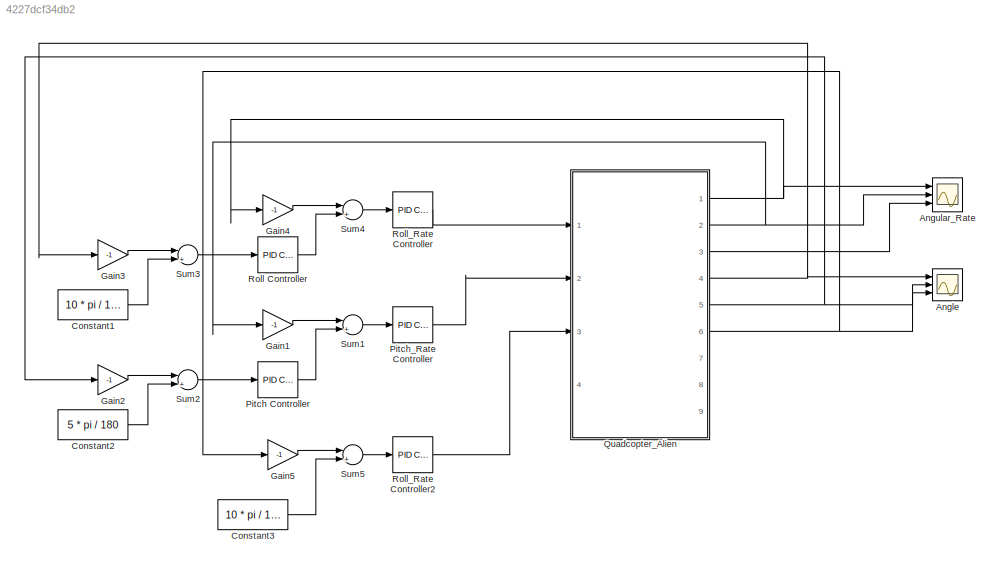
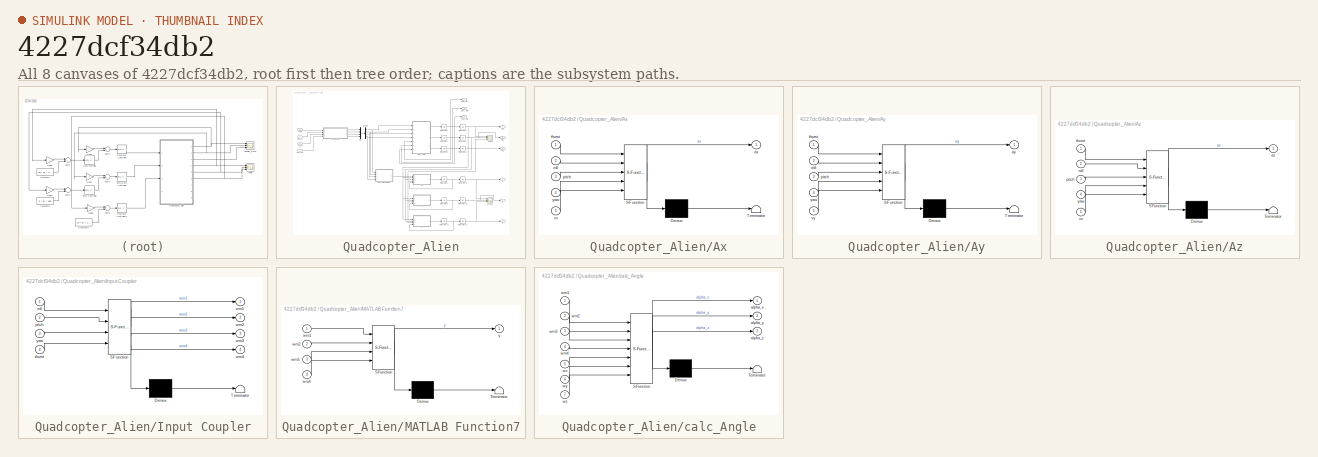
[diagram: thumbnail index - all 8 canvases of the model, root first then tree order]
MODEL slx_4227dcf34db2
KIND model
BLOCK [Scope] Angle
  Floating = off
  NumInputPorts = 3
  Ports = [3]
  SaveName = ScopeData3
  ShowLegends = off
  YMax = 5~5~5
  YMin = -5~-5~-5
BLOCK [Scope] Angular_Rate
  Floating = off
  NumInputPorts = 3
  Ports = [3]
  SaveName = ScopeData2
  ShowLegends = off
  YMax = 1e+06~5~5
  YMin = 300000~-5~-5
BLOCK [Constant] Constant1
  Value = 10 * pi / 180
BLOCK [Constant] Constant2
  Value = 5 * pi / 180
BLOCK [Constant] Constant3
  Value = 10 * pi / 180
BLOCK [Gain] Gain1
  Gain = -1
  OutDataTypeStr = Inherit: Inherit via internal rule
  ParamDataTypeStr = Inherit: Inherit via internal rule
  SaturateOnIntegerOverflow = off
BLOCK [Gain] Gain2
  Gain = -1
  OutDataTypeStr = Inherit: Inherit via internal rule
  ParamDataTypeStr = Inherit: Inherit via internal rule
  SaturateOnIntegerOverflow = off
BLOCK [Gain] Gain3
  Gain = -1
  OutDataTypeStr = Inherit: Inherit via internal rule
  ParamDataTypeStr = Inherit: Inherit via internal rule
  SaturateOnIntegerOverflow = off
BLOCK [Gain] Gain4
  Gain = -1
  OutDataTypeStr = Inherit: Inherit via internal rule
  ParamDataTypeStr = Inherit: Inherit via internal rule
  SaturateOnIntegerOverflow = off
BLOCK [Gain] Gain5
  Gain = -1
  OutDataTypeStr = Inherit: Inherit via internal rule
  ParamDataTypeStr = Inherit: Inherit via internal rule
  SaturateOnIntegerOverflow = off
BLOCK [Reference] Pitch Controller  REF=simulink/Continuous/PID Controller
  AntiWindupMode = none
  Controller = PID
  D = 0
  DOutDataTypeStr = Inherit: Inherit via internal rule
  DOutMax = []
  DOutMin = []
  DParamDataTypeStr = Inherit: Inherit via internal rule
  DParamMax = []
  DParamMin = []
  DifferentiatorICPrevScaledInput = 0
  DifferentiatorOutDataTypeStr = Inherit: Inherit via internal rule
  DifferentiatorOutMax = []
  DifferentiatorOutMin = []
  ExternalReset = none
  FilterContinuousStateAttributes = ''
  FilterMethod = Forward Euler
  FilterOutDataTypeStr = Inherit: Inherit via internal rule
  FilterOutMax = []
  FilterOutMin = []
  FilterRTWStateStorageClass = Auto
  FilterStateMustResolveToSignalObject = off
  Form = Parallel
  I = 0.05
  IOutDataTypeStr = Inherit: Inherit via internal rule
  IOutMax = []
  IOutMin = []
  IParamDataTypeStr = Inherit: Inherit via internal rule
  IParamMax = []
  IParamMin = []
  IgnoreLimit = off
  InitialConditionForFilter = 0
  InitialConditionForIntegrator = 0
  InitialConditionSource = internal
  IntegratorContinuousStateAttributes = ''
  IntegratorMethod = Forward Euler
  IntegratorOutDataTypeStr = Inherit: Inherit via internal rule
  IntegratorOutMax = []
  IntegratorOutMin = []
  IntegratorRTWStateStorageClass = Auto
  IntegratorStateMustResolveToSignalObject = off
  Kb = 1
  KbOutDataTypeStr = Inherit: Inherit via internal rule
  KbOutMax = []
  KbOutMin = []
  KbParamDataTypeStr = Inherit: Inherit via internal rule
  KbParamMax = []
  KbParamMin = []
  Kt = 1
  KtOutDataTypeStr = Inherit: Inherit via internal rule
  KtOutMax = []
  KtOutMin = []
  KtParamDataTypeStr = Inherit: Inherit via internal rule
  KtParamMax = []
  KtParamMin = []
  LimitOutput = off
  LinearizeAsGain = on
  LockScale = off
  LowerSaturationLimit = -inf
  N = 100
  NOutDataTypeStr = Inherit: Inherit via internal rule
  NOutMax = []
  NOutMin = []
  NParamDataTypeStr = Inherit: Inherit via internal rule
  NParamMax = []
  NParamMin = []
  P = 10
  POutDataTypeStr = Inherit: Inherit via internal rule
  POutMax = []
  POutMin = []
  PParamDataTypeStr = Inherit: Inherit via internal rule
  PParamMax = []
  PParamMin = []
  Ports = [1, 1]
  RndMeth = Floor
  SampleTime = -1
  SaturateOnIntegerOverflow = off
  SaturationOutDataTypeStr = Inherit: Same as input
  SaturationOutMax = []
  SaturationOutMin = []
  SourceBlock = simulink/Continuous/PID Controller
  SourceType = PID 1dof
  SumAccumDataTypeStr = Inherit: Inherit via internal rule
  SumDAccumDataTypeStr = Inherit: Inherit via internal rule
  SumDOutDataTypeStr = Inherit: Inherit via internal rule
  SumDOutMax = []
  SumDOutMin = []
  SumI1AccumDataTypeStr = Inherit: Inherit via internal rule
  SumI1OutDataTypeStr = Inherit: Inherit via internal rule
  SumI1OutMax = []
  SumI1OutMin = []
  SumI2AccumDataTypeStr = Inherit: Inherit via internal rule
  SumI2OutDataTypeStr = Inherit: Inherit via internal rule
  SumI2OutMax = []
  SumI2OutMin = []
  SumI3AccumDataTypeStr = Inherit: Inherit via internal rule
  SumI3OutDataTypeStr = Inherit: Inherit via internal rule
  SumI3OutMax = []
  SumI3OutMin = []
  SumOutDataTypeStr = Inherit: Inherit via internal rule
  SumOutMax = []
  SumOutMin = []
  TimeDomain = Continuous-time
  TrackingMode = off
  UpperSaturationLimit = inf
  UseFilter = on
  ZeroCross = on
BLOCK [Reference] Pitch_Rate Controller  REF=simulink/Continuous/PID Controller
  AntiWindupMode = none
  Controller = PID
  D = 0.1
  DOutDataTypeStr = Inherit: Inherit via internal rule
  DOutMax = []
  DOutMin = []
  DParamDataTypeStr = Inherit: Inherit via internal rule
  DParamMax = []
  DParamMin = []
  DifferentiatorICPrevScaledInput = 0
  DifferentiatorOutDataTypeStr = Inherit: Inherit via internal rule
  DifferentiatorOutMax = []
  DifferentiatorOutMin = []
  ExternalReset = none
  FilterContinuousStateAttributes = ''
  FilterMethod = Forward Euler
  FilterOutDataTypeStr = Inherit: Inherit via internal rule
  FilterOutMax = []
  FilterOutMin = []
  FilterRTWStateStorageClass = Auto
  FilterStateMustResolveToSignalObject = off
  Form = Parallel
  I = 0
  IOutDataTypeStr = Inherit: Inherit via internal rule
  IOutMax = []
  IOutMin = []
  IParamDataTypeStr = Inherit: Inherit via internal rule
  IParamMax = []
  IParamMin = []
  IgnoreLimit = off
  InitialConditionForFilter = 0
  InitialConditionForIntegrator = 0
  InitialConditionSource = internal
  IntegratorContinuousStateAttributes = ''
  IntegratorMethod = Forward Euler
  IntegratorOutDataTypeStr = Inherit: Inherit via internal rule
  IntegratorOutMax = []
  IntegratorOutMin = []
  IntegratorRTWStateStorageClass = Auto
  IntegratorStateMustResolveToSignalObject = off
  Kb = 1
  KbOutDataTypeStr = Inherit: Inherit via internal rule
  KbOutMax = []
  KbOutMin = []
  KbParamDataTypeStr = Inherit: Inherit via internal rule
  KbParamMax = []
  KbParamMin = []
  Kt = 1
  KtOutDataTypeStr = Inherit: Inherit via internal rule
  KtOutMax = []
  KtOutMin = []
  KtParamDataTypeStr = Inherit: Inherit via internal rule
  KtParamMax = []
  KtParamMin = []
  LimitOutput = off
  LinearizeAsGain = on
  LockScale = off
  LowerSaturationLimit = -inf
  N = 100
  NOutDataTypeStr = Inherit: Inherit via internal rule
  NOutMax = []
  NOutMin = []
  NParamDataTypeStr = Inherit: Inherit via internal rule
  NParamMax = []
  NParamMin = []
  P = 1
  POutDataTypeStr = Inherit: Inherit via internal rule
  POutMax = []
  POutMin = []
  PParamDataTypeStr = Inherit: Inherit via internal rule
  PParamMax = []
  PParamMin = []
  Ports = [1, 1]
  RndMeth = Floor
  SampleTime = -1
  SaturateOnIntegerOverflow = off
  SaturationOutDataTypeStr = Inherit: Same as input
  SaturationOutMax = []
  SaturationOutMin = []
  SourceBlock = simulink/Continuous/PID Controller
  SourceType = PID 1dof
  SumAccumDataTypeStr = Inherit: Inherit via internal rule
  SumDAccumDataTypeStr = Inherit: Inherit via internal rule
  SumDOutDataTypeStr = Inherit: Inherit via internal rule
  SumDOutMax = []
  SumDOutMin = []
  SumI1AccumDataTypeStr = Inherit: Inherit via internal rule
  SumI1OutDataTypeStr = Inherit: Inherit via internal rule
  SumI1OutMax = []
  SumI1OutMin = []
  SumI2AccumDataTypeStr = Inherit: Inherit via internal rule
  SumI2OutDataTypeStr = Inherit: Inherit via internal rule
  SumI2OutMax = []
  SumI2OutMin = []
  SumI3AccumDataTypeStr = Inherit: Inherit via internal rule
  SumI3OutDataTypeStr = Inherit: Inherit via internal rule
  SumI3OutMax = []
  SumI3OutMin = []
  SumOutDataTypeStr = Inherit: Inherit via internal rule
  SumOutMax = []
  SumOutMin = []
  TimeDomain = Continuous-time
  TrackingMode = off
  UpperSaturationLimit = inf
  UseFilter = on
  ZeroCross = on
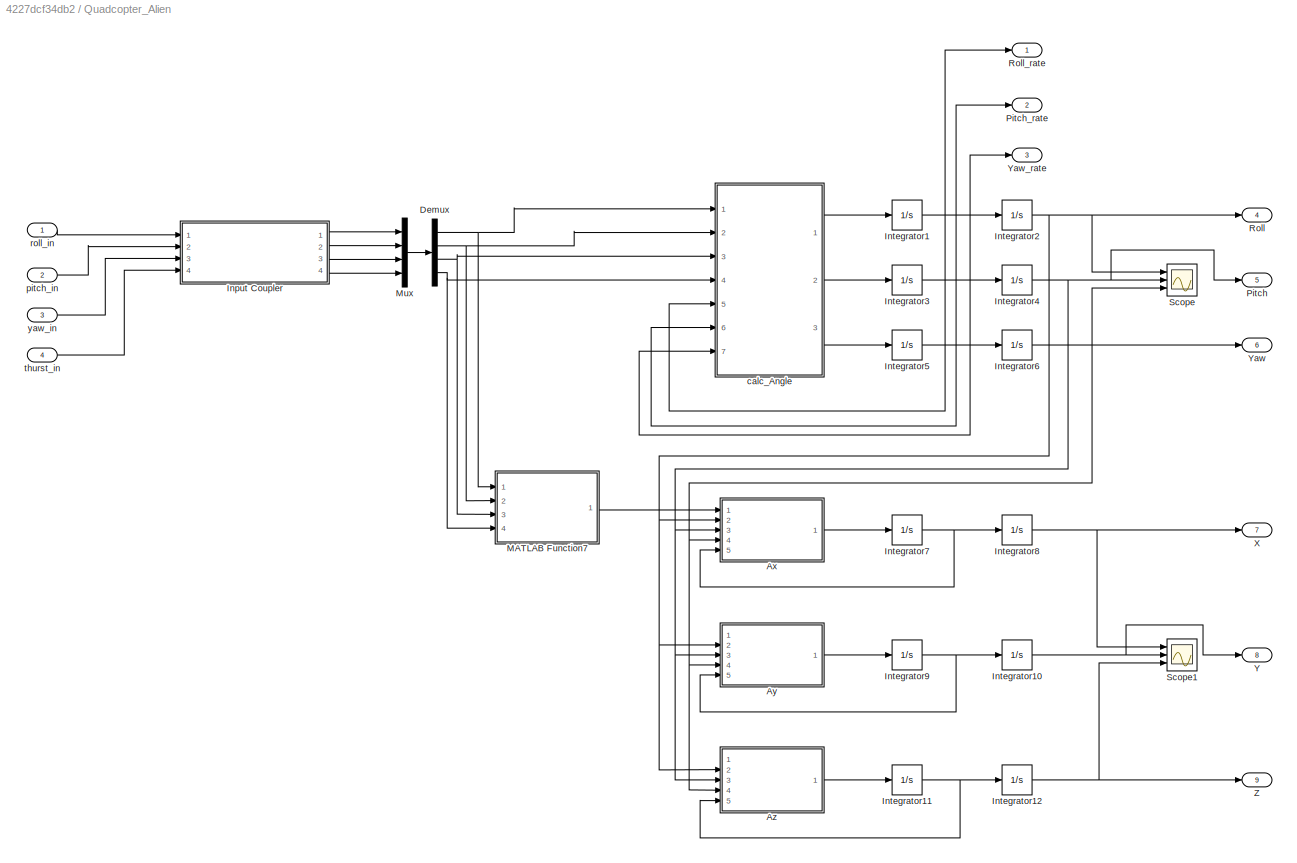
BLOCK [SubSystem] Quadcopter_Alien
  Ports = [4, 9]
  RequestExecContextInheritance = off
BLOCK [SubSystem] Quadcopter_Alien/Ax
  ErrorFcn = Stateflow.Translate.translate
  PermitHierarchicalResolution = ExplicitOnly
  Ports = [5, 1]
  RequestExecContextInheritance = off
  SFBlockType = MATLAB Function
  TreatAsAtomicUnit = on
BLOCK [Demux] Quadcopter_Alien/Ax/ Demux 
  Outputs = 1
  Ports = [1, 1]
BLOCK [S-Function] Quadcopter_Alien/Ax/ SFunction 
  EnableBusSupport = on
  FunctionName = sf_sfun
  PortCounts = [5 2]
  Ports = [5, 2]
  Tag = Stateflow S-Function PID_quad_iris_model 9
BLOCK [Terminator] Quadcopter_Alien/Ax/ Terminator 
BLOCK [Outport] Quadcopter_Alien/Ax/ax
  IconDisplay = Port number
BLOCK [Inport] Quadcopter_Alien/Ax/pitch
  IconDisplay = Port number
  Port = 3
BLOCK [Inport] Quadcopter_Alien/Ax/roll
  IconDisplay = Port number
  Port = 2
BLOCK [Inport] Quadcopter_Alien/Ax/thurst
  IconDisplay = Port number
BLOCK [Inport] Quadcopter_Alien/Ax/vx
  IconDisplay = Port number
  Port = 5
BLOCK [Inport] Quadcopter_Alien/Ax/yaw
  IconDisplay = Port number
  Port = 4
BLOCK [SubSystem] Quadcopter_Alien/Ay
  ErrorFcn = Stateflow.Translate.translate
  PermitHierarchicalResolution = ExplicitOnly
  Ports = [5, 1]
  RequestExecContextInheritance = off
  SFBlockType = MATLAB Function
  TreatAsAtomicUnit = on
BLOCK [Demux] Quadcopter_Alien/Ay/ Demux 
  Outputs = 1
  Ports = [1, 1]
BLOCK [S-Function] Quadcopter_Alien/Ay/ SFunction 
  EnableBusSupport = on
  FunctionName = sf_sfun
  PortCounts = [5 2]
  Ports = [5, 2]
  Tag = Stateflow S-Function PID_quad_iris_model 10
BLOCK [Terminator] Quadcopter_Alien/Ay/ Terminator 
BLOCK [Outport] Quadcopter_Alien/Ay/ay
  IconDisplay = Port number
BLOCK [Inport] Quadcopter_Alien/Ay/pitch
  IconDisplay = Port number
  Port = 3
BLOCK [Inport] Quadcopter_Alien/Ay/roll
  IconDisplay = Port number
  Port = 2
BLOCK [Inport] Quadcopter_Alien/Ay/thurst
  IconDisplay = Port number
BLOCK [Inport] Quadcopter_Alien/Ay/vy
  IconDisplay = Port number
  Port = 5
BLOCK [Inport] Quadcopter_Alien/Ay/yaw
  IconDisplay = Port number
  Port = 4
BLOCK [SubSystem] Quadcopter_Alien/Az
  ErrorFcn = Stateflow.Translate.translate
  PermitHierarchicalResolution = ExplicitOnly
  Ports = [5, 1]
  RequestExecContextInheritance = off
  SFBlockType = MATLAB Function
  TreatAsAtomicUnit = on
BLOCK [Demux] Quadcopter_Alien/Az/ Demux 
  Outputs = 1
  Ports = [1, 1]
BLOCK [S-Function] Quadcopter_Alien/Az/ SFunction 
  EnableBusSupport = on
  FunctionName = sf_sfun
  PortCounts = [5 2]
  Ports = [5, 2]
  Tag = Stateflow S-Function PID_quad_iris_model 11
BLOCK [Terminator] Quadcopter_Alien/Az/ Terminator 
BLOCK [Outport] Quadcopter_Alien/Az/az
  IconDisplay = Port number
BLOCK [Inport] Quadcopter_Alien/Az/pitch
  IconDisplay = Port number
  Port = 3
BLOCK [Inport] Quadcopter_Alien/Az/roll
  IconDisplay = Port number
  Port = 2
BLOCK [Inport] Quadcopter_Alien/Az/thurst
  IconDisplay = Port number
BLOCK [Inport] Quadcopter_Alien/Az/vz
  IconDisplay = Port number
  Port = 5
BLOCK [Inport] Quadcopter_Alien/Az/yaw
  IconDisplay = Port number
  Port = 4
BLOCK [Demux] Quadcopter_Alien/Demux
  DisplayOption = bar
  Ports = [1, 4]
BLOCK [SubSystem] Quadcopter_Alien/Input Coupler
  ErrorFcn = Stateflow.Translate.translate
  PermitHierarchicalResolution = ExplicitOnly
  Ports = [4, 4]
  RequestExecContextInheritance = off
  SFBlockType = MATLAB Function
  TreatAsAtomicUnit = on
BLOCK [Demux] Quadcopter_Alien/Input Coupler/ Demux 
  Outputs = 1
  Ports = [1, 1]
BLOCK [S-Function] Quadcopter_Alien/Input Coupler/ SFunction 
  EnableBusSupport = on
  FunctionName = sf_sfun
  PortCounts = [4 5]
  Ports = [4, 5]
  Tag = Stateflow S-Function PID_quad_iris_model 4
BLOCK [Terminator] Quadcopter_Alien/Input Coupler/ Terminator 
BLOCK [Inport] Quadcopter_Alien/Input Coupler/pitch
  IconDisplay = Port number
  Port = 2
BLOCK [Inport] Quadcopter_Alien/Input Coupler/roll
  IconDisplay = Port number
BLOCK [Inport] Quadcopter_Alien/Input Coupler/thurst
  IconDisplay = Port number
  Port = 4
BLOCK [Outport] Quadcopter_Alien/Input Coupler/wm1
  IconDisplay = Port number
BLOCK [Outport] Quadcopter_Alien/Input Coupler/wm2
  IconDisplay = Port number
  Port = 2
BLOCK [Outport] Quadcopter_Alien/Input Coupler/wm3
  IconDisplay = Port number
  Port = 3
BLOCK [Outport] Quadcopter_Alien/Input Coupler/wm4
  IconDisplay = Port number
  Port = 4
BLOCK [Inport] Quadcopter_Alien/Input Coupler/yaw
  IconDisplay = Port number
  Port = 3
BLOCK [Integrator] Quadcopter_Alien/Integrator1
  Ports = [1, 1]
BLOCK [Integrator] Quadcopter_Alien/Integrator10
  Ports = [1, 1]
BLOCK [Integrator] Quadcopter_Alien/Integrator11
  Ports = [1, 1]
BLOCK [Integrator] Quadcopter_Alien/Integrator12
  Ports = [1, 1]
BLOCK [Integrator] Quadcopter_Alien/Integrator2
  Ports = [1, 1]
BLOCK [Integrator] Quadcopter_Alien/Integrator3
  Ports = [1, 1]
BLOCK [Integrator] Quadcopter_Alien/Integrator4
  Ports = [1, 1]
BLOCK [Integrator] Quadcopter_Alien/Integrator5
  Ports = [1, 1]
BLOCK [Integrator] Quadcopter_Alien/Integrator6
  Ports = [1, 1]
BLOCK [Integrator] Quadcopter_Alien/Integrator7
  Ports = [1, 1]
BLOCK [Integrator] Quadcopter_Alien/Integrator8
  Ports = [1, 1]
BLOCK [Integrator] Quadcopter_Alien/Integrator9
  Ports = [1, 1]
BLOCK [SubSystem] Quadcopter_Alien/MATLAB Function7
  ErrorFcn = Stateflow.Translate.translate
  PermitHierarchicalResolution = ExplicitOnly
  Ports = [4, 1]
  RequestExecContextInheritance = off
  SFBlockType = MATLAB Function
  TreatAsAtomicUnit = on
BLOCK [Demux] Quadcopter_Alien/MATLAB Function7/ Demux 
  Outputs = 1
  Ports = [1, 1]
BLOCK [S-Function] Quadcopter_Alien/MATLAB Function7/ SFunction 
  EnableBusSupport = on
  FunctionName = sf_sfun
  PortCounts = [4 2]
  Ports = [4, 2]
  Tag = Stateflow S-Function PID_quad_iris_model 8
BLOCK [Terminator] Quadcopter_Alien/MATLAB Function7/ Terminator 
BLOCK [Inport] Quadcopter_Alien/MATLAB Function7/wm1
  IconDisplay = Port number
BLOCK [Inport] Quadcopter_Alien/MATLAB Function7/wm2
  IconDisplay = Port number
  Port = 2
BLOCK [Inport] Quadcopter_Alien/MATLAB Function7/wm3
  IconDisplay = Port number
  Port = 3
BLOCK [Inport] Quadcopter_Alien/MATLAB Function7/wm4
  IconDisplay = Port number
  Port = 4
BLOCK [Outport] Quadcopter_Alien/MATLAB Function7/y
  IconDisplay = Port number
BLOCK [Mux] Quadcopter_Alien/Mux
  DisplayOption = bar
  Ports = [4, 1]
BLOCK [Outport] Quadcopter_Alien/Pitch
  IconDisplay = Port number
  Port = 5
BLOCK [Outport] Quadcopter_Alien/Pitch_rate
  IconDisplay = Port number
  Port = 2
BLOCK [Outport] Quadcopter_Alien/Roll
  IconDisplay = Port number
  Port = 4
BLOCK [Outport] Quadcopter_Alien/Roll_rate
  IconDisplay = Port number
BLOCK [Scope] Quadcopter_Alien/Scope
  Floating = off
  NumInputPorts = 3
  Ports = [3]
  ShowLegends = off
  YMax = 5~5~5
  YMin = -5~-5~-5
BLOCK [Scope] Quadcopter_Alien/Scope1
  Floating = off
  NumInputPorts = 3
  Ports = [3]
  SaveName = ScopeData1
  ShowLegends = off
  YMax = 5~5~5
  YMin = -5~-5~-5
BLOCK [Outport] Quadcopter_Alien/X
  IconDisplay = Port number
  Port = 7
BLOCK [Outport] Quadcopter_Alien/Y
  IconDisplay = Port number
  Port = 8
BLOCK [Outport] Quadcopter_Alien/Yaw
  IconDisplay = Port number
  Port = 6
BLOCK [Outport] Quadcopter_Alien/Yaw_rate
  IconDisplay = Port number
  Port = 3
BLOCK [Outport] Quadcopter_Alien/Z
  IconDisplay = Port number
  Port = 9
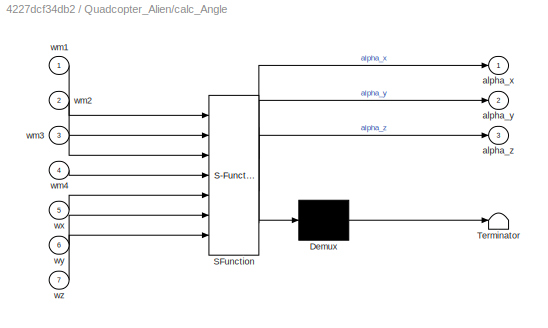
BLOCK [SubSystem] Quadcopter_Alien/calc_Angle
  ErrorFcn = Stateflow.Translate.translate
  PermitHierarchicalResolution = ExplicitOnly
  Ports = [7, 3]
  RequestExecContextInheritance = off
  SFBlockType = MATLAB Function
  TreatAsAtomicUnit = on
BLOCK [Demux] Quadcopter_Alien/calc_Angle/ Demux 
  Outputs = 1
  Ports = [1, 1]
BLOCK [S-Function] Quadcopter_Alien/calc_Angle/ SFunction 
  EnableBusSupport = on
  FunctionName = sf_sfun
  PortCounts = [7 4]
  Ports = [7, 4]
  Tag = Stateflow S-Function PID_quad_iris_model 13
BLOCK [Terminator] Quadcopter_Alien/calc_Angle/ Terminator 
BLOCK [Outport] Quadcopter_Alien/calc_Angle/alpha_x
  IconDisplay = Port number
BLOCK [Outport] Quadcopter_Alien/calc_Angle/alpha_y
  IconDisplay = Port number
  Port = 2
BLOCK [Outport] Quadcopter_Alien/calc_Angle/alpha_z
  IconDisplay = Port number
  Port = 3
BLOCK [Inport] Quadcopter_Alien/calc_Angle/wm1
  IconDisplay = Port number
BLOCK [Inport] Quadcopter_Alien/calc_Angle/wm2
  IconDisplay = Port number
  Port = 2
BLOCK [Inport] Quadcopter_Alien/calc_Angle/wm3
  IconDisplay = Port number
  Port = 3
BLOCK [Inport] Quadcopter_Alien/calc_Angle/wm4
  IconDisplay = Port number
  Port = 4
BLOCK [Inport] Quadcopter_Alien/calc_Angle/wx
  IconDisplay = Port number
  Port = 5
BLOCK [Inport] Quadcopter_Alien/calc_Angle/wy
  IconDisplay = Port number
  Port = 6
BLOCK [Inport] Quadcopter_Alien/calc_Angle/wz
  IconDisplay = Port number
  Port = 7
BLOCK [Inport] Quadcopter_Alien/pitch_in
  IconDisplay = Port number
  Port = 2
BLOCK [Inport] Quadcopter_Alien/roll_in
  IconDisplay = Port number
BLOCK [Inport] Quadcopter_Alien/thurst_in
  IconDisplay = Port number
  Port = 4
BLOCK [Inport] Quadcopter_Alien/yaw_in
  IconDisplay = Port number
  Port = 3
BLOCK [Reference] Roll Controller  REF=simulink/Continuous/PID Controller
  AntiWindupMode = none
  Controller = PID
  D = 0
  DOutDataTypeStr = Inherit: Inherit via internal rule
  DOutMax = []
  DOutMin = []
  DParamDataTypeStr = Inherit: Inherit via internal rule
  DParamMax = []
  DParamMin = []
  DifferentiatorICPrevScaledInput = 0
  DifferentiatorOutDataTypeStr = Inherit: Inherit via internal rule
  DifferentiatorOutMax = []
  DifferentiatorOutMin = []
  ExternalReset = none
  FilterContinuousStateAttributes = ''
  FilterMethod = Forward Euler
  FilterOutDataTypeStr = Inherit: Inherit via internal rule
  FilterOutMax = []
  FilterOutMin = []
  FilterRTWStateStorageClass = Auto
  FilterStateMustResolveToSignalObject = off
  Form = Parallel
  I = 0.05
  IOutDataTypeStr = Inherit: Inherit via internal rule
  IOutMax = []
  IOutMin = []
  IParamDataTypeStr = Inherit: Inherit via internal rule
  IParamMax = []
  IParamMin = []
  IgnoreLimit = off
  InitialConditionForFilter = 0
  InitialConditionForIntegrator = 0
  InitialConditionSource = internal
  IntegratorContinuousStateAttributes = ''
  IntegratorMethod = Forward Euler
  IntegratorOutDataTypeStr = Inherit: Inherit via internal rule
  IntegratorOutMax = []
  IntegratorOutMin = []
  IntegratorRTWStateStorageClass = Auto
  IntegratorStateMustResolveToSignalObject = off
  Kb = 1
  KbOutDataTypeStr = Inherit: Inherit via internal rule
  KbOutMax = []
  KbOutMin = []
  KbParamDataTypeStr = Inherit: Inherit via internal rule
  KbParamMax = []
  KbParamMin = []
  Kt = 1
  KtOutDataTypeStr = Inherit: Inherit via internal rule
  KtOutMax = []
  KtOutMin = []
  KtParamDataTypeStr = Inherit: Inherit via internal rule
  KtParamMax = []
  KtParamMin = []
  LimitOutput = off
  LinearizeAsGain = on
  LockScale = off
  LowerSaturationLimit = -inf
  N = 100
  NOutDataTypeStr = Inherit: Inherit via internal rule
  NOutMax = []
  NOutMin = []
  NParamDataTypeStr = Inherit: Inherit via internal rule
  NParamMax = []
  NParamMin = []
  P = 10
  POutDataTypeStr = Inherit: Inherit via internal rule
  POutMax = []
  POutMin = []
  PParamDataTypeStr = Inherit: Inherit via internal rule
  PParamMax = []
  PParamMin = []
  Ports = [1, 1]
  RndMeth = Floor
  SampleTime = -1
  SaturateOnIntegerOverflow = off
  SaturationOutDataTypeStr = Inherit: Same as input
  SaturationOutMax = []
  SaturationOutMin = []
  SourceBlock = simulink/Continuous/PID Controller
  SourceType = PID 1dof
  SumAccumDataTypeStr = Inherit: Inherit via internal rule
  SumDAccumDataTypeStr = Inherit: Inherit via internal rule
  SumDOutDataTypeStr = Inherit: Inherit via internal rule
  SumDOutMax = []
  SumDOutMin = []
  SumI1AccumDataTypeStr = Inherit: Inherit via internal rule
  SumI1OutDataTypeStr = Inherit: Inherit via internal rule
  SumI1OutMax = []
  SumI1OutMin = []
  SumI2AccumDataTypeStr = Inherit: Inherit via internal rule
  SumI2OutDataTypeStr = Inherit: Inherit via internal rule
  SumI2OutMax = []
  SumI2OutMin = []
  SumI3AccumDataTypeStr = Inherit: Inherit via internal rule
  SumI3OutDataTypeStr = Inherit: Inherit via internal rule
  SumI3OutMax = []
  SumI3OutMin = []
  SumOutDataTypeStr = Inherit: Inherit via internal rule
  SumOutMax = []
  SumOutMin = []
  TimeDomain = Continuous-time
  TrackingMode = off
  UpperSaturationLimit = inf
  UseFilter = on
  ZeroCross = on
BLOCK [Reference] Roll_Rate Controller  REF=simulink/Continuous/PID Controller
  AntiWindupMode = none
  Controller = PID
  D = 0.1
  DOutDataTypeStr = Inherit: Inherit via internal rule
  DOutMax = []
  DOutMin = []
  DParamDataTypeStr = Inherit: Inherit via internal rule
  DParamMax = []
  DParamMin = []
  DifferentiatorICPrevScaledInput = 0
  DifferentiatorOutDataTypeStr = Inherit: Inherit via internal rule
  DifferentiatorOutMax = []
  DifferentiatorOutMin = []
  ExternalReset = none
  FilterContinuousStateAttributes = ''
  FilterMethod = Forward Euler
  FilterOutDataTypeStr = Inherit: Inherit via internal rule
  FilterOutMax = []
  FilterOutMin = []
  FilterRTWStateStorageClass = Auto
  FilterStateMustResolveToSignalObject = off
  Form = Parallel
  I = 0
  IOutDataTypeStr = Inherit: Inherit via internal rule
  IOutMax = []
  IOutMin = []
  IParamDataTypeStr = Inherit: Inherit via internal rule
  IParamMax = []
  IParamMin = []
  IgnoreLimit = off
  InitialConditionForFilter = 0
  InitialConditionForIntegrator = 0
  InitialConditionSource = internal
  IntegratorContinuousStateAttributes = ''
  IntegratorMethod = Forward Euler
  IntegratorOutDataTypeStr = Inherit: Inherit via internal rule
  IntegratorOutMax = []
  IntegratorOutMin = []
  IntegratorRTWStateStorageClass = Auto
  IntegratorStateMustResolveToSignalObject = off
  Kb = 1
  KbOutDataTypeStr = Inherit: Inherit via internal rule
  KbOutMax = []
  KbOutMin = []
  KbParamDataTypeStr = Inherit: Inherit via internal rule
  KbParamMax = []
  KbParamMin = []
  Kt = 1
  KtOutDataTypeStr = Inherit: Inherit via internal rule
  KtOutMax = []
  KtOutMin = []
  KtParamDataTypeStr = Inherit: Inherit via internal rule
  KtParamMax = []
  KtParamMin = []
  LimitOutput = off
  LinearizeAsGain = on
  LockScale = off
  LowerSaturationLimit = -inf
  N = 100
  NOutDataTypeStr = Inherit: Inherit via internal rule
  NOutMax = []
  NOutMin = []
  NParamDataTypeStr = Inherit: Inherit via internal rule
  NParamMax = []
  NParamMin = []
  P = 1
  POutDataTypeStr = Inherit: Inherit via internal rule
  POutMax = []
  POutMin = []
  PParamDataTypeStr = Inherit: Inherit via internal rule
  PParamMax = []
  PParamMin = []
  Ports = [1, 1]
  RndMeth = Floor
  SampleTime = -1
  SaturateOnIntegerOverflow = off
  SaturationOutDataTypeStr = Inherit: Same as input
  SaturationOutMax = []
  SaturationOutMin = []
  SourceBlock = simulink/Continuous/PID Controller
  SourceType = PID 1dof
  SumAccumDataTypeStr = Inherit: Inherit via internal rule
  SumDAccumDataTypeStr = Inherit: Inherit via internal rule
  SumDOutDataTypeStr = Inherit: Inherit via internal rule
  SumDOutMax = []
  SumDOutMin = []
  SumI1AccumDataTypeStr = Inherit: Inherit via internal rule
  SumI1OutDataTypeStr = Inherit: Inherit via internal rule
  SumI1OutMax = []
  SumI1OutMin = []
  SumI2AccumDataTypeStr = Inherit: Inherit via internal rule
  SumI2OutDataTypeStr = Inherit: Inherit via internal rule
  SumI2OutMax = []
  SumI2OutMin = []
  SumI3AccumDataTypeStr = Inherit: Inherit via internal rule
  SumI3OutDataTypeStr = Inherit: Inherit via internal rule
  SumI3OutMax = []
  SumI3OutMin = []
  SumOutDataTypeStr = Inherit: Inherit via internal rule
  SumOutMax = []
  SumOutMin = []
  TimeDomain = Continuous-time
  TrackingMode = off
  UpperSaturationLimit = inf
  UseFilter = on
  ZeroCross = on
BLOCK [Reference] Roll_Rate Controller2  REF=simulink/Continuous/PID Controller
  AntiWindupMode = none
  Controller = PID
  D = 0.25
  DOutDataTypeStr = Inherit: Inherit via internal rule
  DOutMax = []
  DOutMin = []
  DParamDataTypeStr = Inherit: Inherit via internal rule
  DParamMax = []
  DParamMin = []
  DifferentiatorICPrevScaledInput = 0
  DifferentiatorOutDataTypeStr = Inherit: Inherit via internal rule
  DifferentiatorOutMax = []
  DifferentiatorOutMin = []
  ExternalReset = none
  FilterContinuousStateAttributes = ''
  FilterMethod = Forward Euler
  FilterOutDataTypeStr = Inherit: Inherit via internal rule
  FilterOutMax = []
  FilterOutMin = []
  FilterRTWStateStorageClass = Auto
  FilterStateMustResolveToSignalObject = off
  Form = Parallel
  I = 0
  IOutDataTypeStr = Inherit: Inherit via internal rule
  IOutMax = []
  IOutMin = []
  IParamDataTypeStr = Inherit: Inherit via internal rule
  IParamMax = []
  IParamMin = []
  IgnoreLimit = off
  InitialConditionForFilter = 0
  InitialConditionForIntegrator = 0
  InitialConditionSource = internal
  IntegratorContinuousStateAttributes = ''
  IntegratorMethod = Forward Euler
  IntegratorOutDataTypeStr = Inherit: Inherit via internal rule
  IntegratorOutMax = []
  IntegratorOutMin = []
  IntegratorRTWStateStorageClass = Auto
  IntegratorStateMustResolveToSignalObject = off
  Kb = 1
  KbOutDataTypeStr = Inherit: Inherit via internal rule
  KbOutMax = []
  KbOutMin = []
  KbParamDataTypeStr = Inherit: Inherit via internal rule
  KbParamMax = []
  KbParamMin = []
  Kt = 1
  KtOutDataTypeStr = Inherit: Inherit via internal rule
  KtOutMax = []
  KtOutMin = []
  KtParamDataTypeStr = Inherit: Inherit via internal rule
  KtParamMax = []
  KtParamMin = []
  LimitOutput = off
  LinearizeAsGain = on
  LockScale = off
  LowerSaturationLimit = -inf
  N = 100
  NOutDataTypeStr = Inherit: Inherit via internal rule
  NOutMax = []
  NOutMin = []
  NParamDataTypeStr = Inherit: Inherit via internal rule
  NParamMax = []
  NParamMin = []
  P = 1
  POutDataTypeStr = Inherit: Inherit via internal rule
  POutMax = []
  POutMin = []
  PParamDataTypeStr = Inherit: Inherit via internal rule
  PParamMax = []
  PParamMin = []
  Ports = [1, 1]
  RndMeth = Floor
  SampleTime = -1
  SaturateOnIntegerOverflow = off
  SaturationOutDataTypeStr = Inherit: Same as input
  SaturationOutMax = []
  SaturationOutMin = []
  SourceBlock = simulink/Continuous/PID Controller
  SourceType = PID 1dof
  SumAccumDataTypeStr = Inherit: Inherit via internal rule
  SumDAccumDataTypeStr = Inherit: Inherit via internal rule
  SumDOutDataTypeStr = Inherit: Inherit via internal rule
  SumDOutMax = []
  SumDOutMin = []
  SumI1AccumDataTypeStr = Inherit: Inherit via internal rule
  SumI1OutDataTypeStr = Inherit: Inherit via internal rule
  SumI1OutMax = []
  SumI1OutMin = []
  SumI2AccumDataTypeStr = Inherit: Inherit via internal rule
  SumI2OutDataTypeStr = Inherit: Inherit via internal rule
  SumI2OutMax = []
  SumI2OutMin = []
  SumI3AccumDataTypeStr = Inherit: Inherit via internal rule
  SumI3OutDataTypeStr = Inherit: Inherit via internal rule
  SumI3OutMax = []
  SumI3OutMin = []
  SumOutDataTypeStr = Inherit: Inherit via internal rule
  SumOutMax = []
  SumOutMin = []
  TimeDomain = Continuous-time
  TrackingMode = off
  UpperSaturationLimit = inf
  UseFilter = on
  ZeroCross = on
BLOCK [Sum] Sum1
  InputSameDT = off
  Inputs = |++
  OutDataTypeStr = Inherit: Inherit via internal rule
  Ports = [2, 1]
  SaturateOnIntegerOverflow = off
BLOCK [Sum] Sum2
  InputSameDT = off
  Inputs = |++
  OutDataTypeStr = Inherit: Inherit via internal rule
  Ports = [2, 1]
  SaturateOnIntegerOverflow = off
BLOCK [Sum] Sum3
  InputSameDT = off
  Inputs = |++
  OutDataTypeStr = Inherit: Inherit via internal rule
  Ports = [2, 1]
  SaturateOnIntegerOverflow = off
BLOCK [Sum] Sum4
  InputSameDT = off
  Inputs = |++
  OutDataTypeStr = Inherit: Inherit via internal rule
  Ports = [2, 1]
  SaturateOnIntegerOverflow = off
BLOCK [Sum] Sum5
  InputSameDT = off
  Inputs = |++
  OutDataTypeStr = Inherit: Inherit via internal rule
  Ports = [2, 1]
  SaturateOnIntegerOverflow = off
LINE Constant1:1 -> Sum3:2
LINE Constant2:1 -> Sum2:2
LINE Constant3:1 -> Sum5:2
LINE Gain1:1 -> Sum1:1
LINE Gain2:1 -> Sum2:1
LINE Gain3:1 -> Sum3:1
LINE Gain4:1 -> Sum4:1
LINE Gain5:1 -> Sum5:1
LINE Pitch Controller:1 -> Sum1:2
LINE Pitch_Rate Controller:1 -> Quadcopter_Alien:2
LINE Quadcopter_Alien/Ax:1 -> Quadcopter_Alien/Integrator7:1
LINE Quadcopter_Alien/Ay:1 -> Quadcopter_Alien/Integrator9:1
LINE Quadcopter_Alien/Az:1 -> Quadcopter_Alien/Integrator11:1
NET Quadcopter_Alien/Demux:1 -> Quadcopter_Alien/MATLAB Function7:1, Quadcopter_Alien/calc_Angle:1
NET Quadcopter_Alien/Demux:2 -> Quadcopter_Alien/MATLAB Function7:2, Quadcopter_Alien/calc_Angle:2
NET Quadcopter_Alien/Demux:3 -> Quadcopter_Alien/MATLAB Function7:3, Quadcopter_Alien/calc_Angle:3
NET Quadcopter_Alien/Demux:4 -> Quadcopter_Alien/MATLAB Function7:4, Quadcopter_Alien/calc_Angle:4
LINE Quadcopter_Alien/Input Coupler:1 -> Quadcopter_Alien/Mux:1
LINE Quadcopter_Alien/Input Coupler:2 -> Quadcopter_Alien/Mux:2
LINE Quadcopter_Alien/Input Coupler:3 -> Quadcopter_Alien/Mux:3
LINE Quadcopter_Alien/Input Coupler:4 -> Quadcopter_Alien/Mux:4
NET Quadcopter_Alien/Integrator10:1 -> Quadcopter_Alien/Scope1:2, Quadcopter_Alien/Y:1
NET Quadcopter_Alien/Integrator11:1 -> Quadcopter_Alien/Az:5, Quadcopter_Alien/Integrator12:1
NET Quadcopter_Alien/Integrator12:1 -> Quadcopter_Alien/Scope1:3, Quadcopter_Alien/Z:1
NET Quadcopter_Alien/Integrator1:1 -> Quadcopter_Alien/Integrator2:1, Quadcopter_Alien/Roll_rate:1, Quadcopter_Alien/calc_Angle:5
NET Quadcopter_Alien/Integrator2:1 -> Quadcopter_Alien/Ax:2, Quadcopter_Alien/Ay:2, Quadcopter_Alien/Az:2, Quadcopter_Alien/Roll:1, Quadcopter_Alien/Scope:1
NET Quadcopter_Alien/Integrator3:1 -> Quadcopter_Alien/Integrator4:1, Quadcopter_Alien/Pitch_rate:1, Quadcopter_Alien/calc_Angle:6
NET Quadcopter_Alien/Integrator4:1 -> Quadcopter_Alien/Ax:3, Quadcopter_Alien/Ay:3, Quadcopter_Alien/Az:3, Quadcopter_Alien/Pitch:1, Quadcopter_Alien/Scope:2
NET Quadcopter_Alien/Integrator5:1 -> Quadcopter_Alien/Integrator6:1, Quadcopter_Alien/Yaw_rate:1, Quadcopter_Alien/calc_Angle:7
NET Quadcopter_Alien/Integrator6:1 -> Quadcopter_Alien/Ax:4, Quadcopter_Alien/Ay:4, Quadcopter_Alien/Az:4, Quadcopter_Alien/Scope:3, Quadcopter_Alien/Yaw:1
NET Quadcopter_Alien/Integrator7:1 -> Quadcopter_Alien/Ax:5, Quadcopter_Alien/Integrator8:1
NET Quadcopter_Alien/Integrator8:1 -> Quadcopter_Alien/Scope1:1, Quadcopter_Alien/X:1
NET Quadcopter_Alien/Integrator9:1 -> Quadcopter_Alien/Ay:5, Quadcopter_Alien/Integrator10:1
LINE Quadcopter_Alien/MATLAB Function7:1 -> Quadcopter_Alien/Ax:1
LINE Quadcopter_Alien/Mux:1 -> Quadcopter_Alien/Demux:1
LINE Quadcopter_Alien/calc_Angle:1 -> Quadcopter_Alien/Integrator1:1
LINE Quadcopter_Alien/calc_Angle:2 -> Quadcopter_Alien/Integrator3:1
LINE Quadcopter_Alien/calc_Angle:3 -> Quadcopter_Alien/Integrator5:1
LINE Quadcopter_Alien/pitch_in:1 -> Quadcopter_Alien/Input Coupler:2
LINE Quadcopter_Alien/roll_in:1 -> Quadcopter_Alien/Input Coupler:1
LINE Quadcopter_Alien/thurst_in:1 -> Quadcopter_Alien/Input Coupler:4
LINE Quadcopter_Alien/yaw_in:1 -> Quadcopter_Alien/Input Coupler:3
NET Quadcopter_Alien:1 -> Angular_Rate:1, Gain4:1
NET Quadcopter_Alien:2 -> Angular_Rate:2, Gain1:1
LINE Quadcopter_Alien:3 -> Angular_Rate:3
NET Quadcopter_Alien:4 -> Angle:1, Gain3:1
NET Quadcopter_Alien:5 -> Angle:2, Gain2:1
NET Quadcopter_Alien:6 -> Angle:3, Gain5:1
LINE Roll Controller:1 -> Sum4:2
LINE Roll_Rate Controller2:1 -> Quadcopter_Alien:3
LINE Roll_Rate Controller:1 -> Quadcopter_Alien:1
LINE Sum1:1 -> Pitch_Rate Controller:1
LINE Sum2:1 -> Pitch Controller:1
LINE Sum3:1 -> Roll Controller:1
LINE Sum4:1 -> Roll_Rate Controller:1
LINE Sum5:1 -> Roll_Rate Controller2:1
note: NET lines group one-source signal fan-out (src -> all destinations, sorted); 1:1 wires keep LINE
CHART Quadcopter_Alien/Input Coupler states=1 transitions=1
  STATE_LABEL 'eML_blk_kernel()'
  STATE_LABEL 'SCRIPT:\nfunction [wm1, wm2, wm3, wm4] = input_coupler(roll, pitch, yaw, thurst)\n%#codegen\n\n% 控制耦合\n% 输入是归一化的，-1~1\n\n% 基础输入 1000\nthurst_bias = 1407;\n\n% 去归一化\nroll  = roll  * 500;\npitch = pitch * 500;\nyaw   = yaw   * 500;\nthurst = thurst * 1000;\n\nwm1 = thurst + thurst_bias - roll - pitch + yaw;\nwm2 = thurst + thurst_bias + roll + pitch + yaw;\nwm3 = thurst + thurst_bias + roll - pitch - yaw;\nwm4 = thurs...<+47ch>'
CHART Quadcopter_Alien/MATLAB Function7 states=1 transitions=1
  STATE_LABEL 'eML_blk_kernel()'
  STATE_LABEL 'SCRIPT:\nfunction y = thurst(wm1, wm2, wm3, wm4)\n%#codegen\n\nk1 = 3.1 * 10^-7;\ny = k1 * (wm1^2 + wm2^2 + wm3^2 + wm4^2);\nreturn;'
CHART Quadcopter_Alien/Ax states=1 transitions=1
  STATE_LABEL 'eML_blk_kernel()'
  STATE_LABEL 'SCRIPT:\nfunction ax = calc_ax(thurst, roll, pitch, yaw, vx)\n%#codegen\n% roll  -> alpha\n% pitch -> beta\n% yaw   -> gamma\n\nm  = 0.25;\ng  = 9.81;\nkf = 0;\n\nax = thurst * (sin(roll) * sin(yaw) + cos(roll) * sin(pitch) * cos(yaw));\nax = ax - kf * vx;\nax = ax / m;\n\nreturn;'
CHART Quadcopter_Alien/Ay states=1 transitions=1
  STATE_LABEL 'eML_blk_kernel()'
  STATE_LABEL 'SCRIPT:\nfunction ay = calc_ay(thurst, roll, pitch, yaw, vy)\n%#codegen\n% roll  -> alpha\n% pitch -> beta\n% yaw   -> gamma\n\nm  = 0.25;\ng  = 9.81;\nkf = 0;\n\nay = thurst * (-sin(roll) * cos(yaw) + cos(roll) * sin(pitch) * sin(yaw));\nay = ay - kf * vy;\nay = ay / m;\n\nreturn;'
CHART Quadcopter_Alien/Az states=1 transitions=1
  STATE_LABEL 'eML_blk_kernel()'
  STATE_LABEL 'SCRIPT:\nfunction az = calc_az(thurst, roll, pitch, yaw, vz)\n%#codegen\n% roll  -> alpha\n% pitch -> beta\n% yaw   -> gamma\n\nm  = 0.25;\ng  = 9.81;\nkf = 0;\n\naz = thurst * (cos(roll) * cos(pitch));\naz = az / m - g;\n\nreturn;'
CHART Quadcopter_Alien/calc_Angle states=1 transitions=1
  STATE_LABEL 'eML_blk_kernel()'
  STATE_LABEL 'SCRIPT:\nfunction [alpha_x, alpha_y, alpha_z] = calc_alpha(wm1,wm2, wm3, wm4, wx, wy, wz)\n%#codegen\n\nlf = 0.25;\nlr = 0.28;\nyakee = 60 * pi / 180;\nzulu  = 25 * pi / 180;\n\nJx = 0.033;\nJy = 0.042;\nJz = 0.061;\n\nm  = 0.25;\ng  = 9.81;\nkf = 0;\n\nkt = 3.10 * 10^-7;\nkq = 1.12 * 10^-6;\n\nMx = kt * ((wm2^2 - wm4^2) * sin(zulu) * lr + (wm3^2 - wm1^2)  * sin(yakee) * lf);\nMy = kt * ((wm2^2 + wm4^2) * cos(zulu) * ...<+291ch>'
